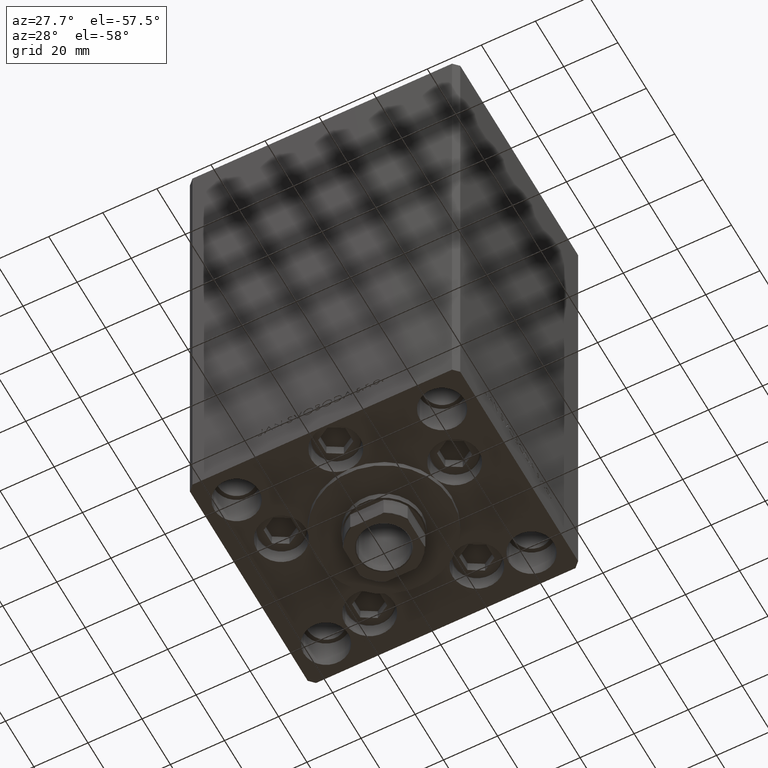
[diagram: clean part render]
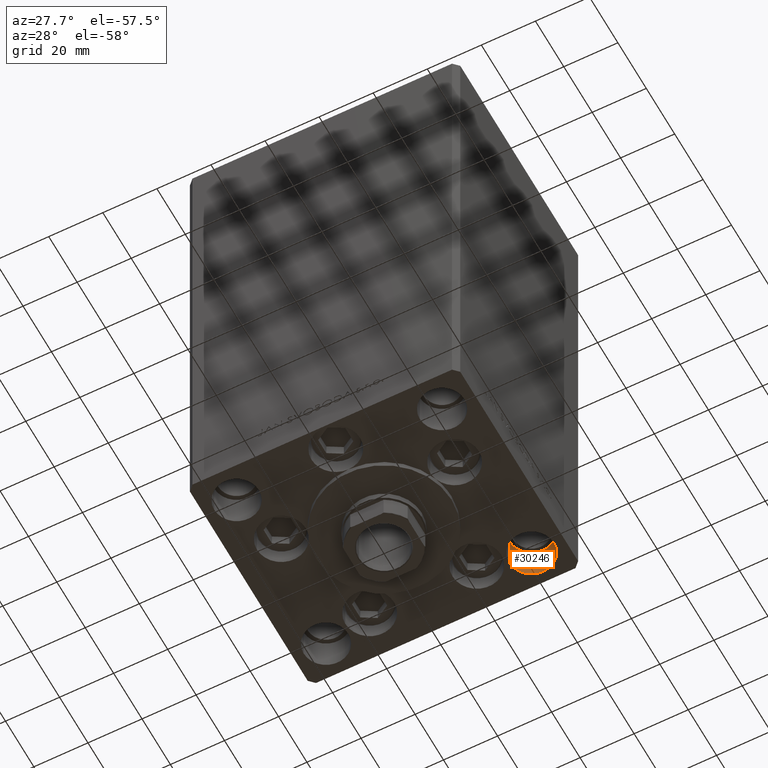
[diagram: same view with one face highlighted and labeled with its STEP entity id]
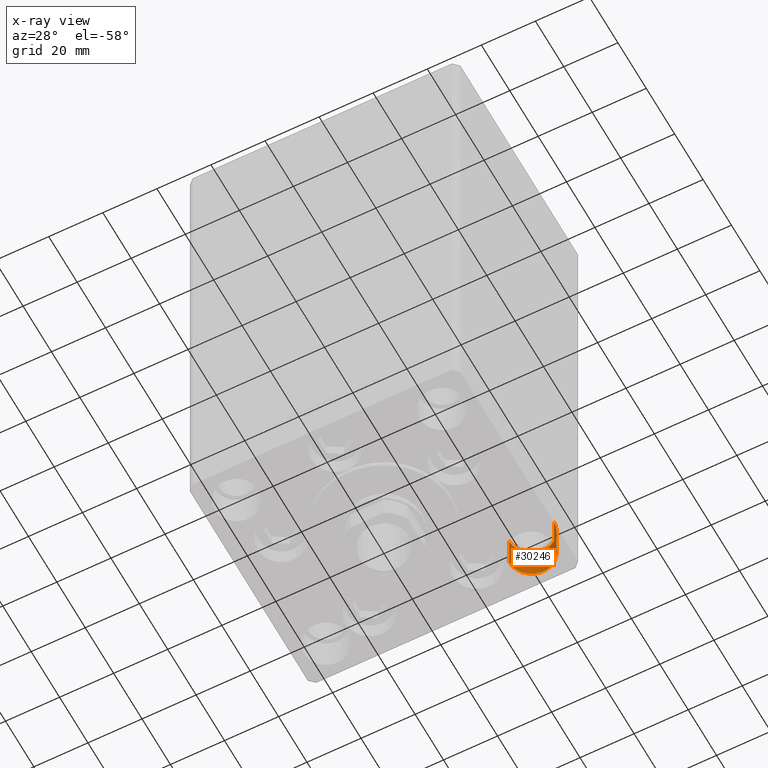
[diagram: x-ray of the same camera — body ghosted, the highlighted face saturated]
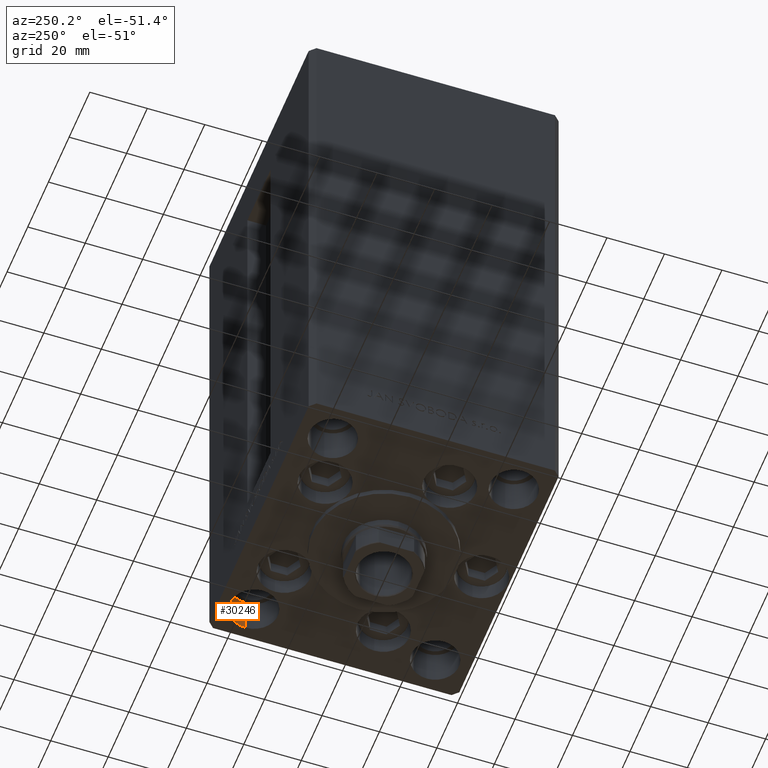
[diagram: same view with one face highlighted and labeled with its STEP entity id]
A machine part, auxiliary view. The second image highlights one B-rep face of the part: STEP entity #30246.
The next image is the same camera in x-ray: the body ghosted, the highlighted face saturated — about 0% of this face is hidden behind the body in this view.
A second angle (auxiliary view) of the same face is appended — the face is thin or edge-on in the first view.
In plain terms, the highlighted cylindrical surface (edge-blend (fillet) strip) has radius 8.25 mm, axis along (0, 0, -1).
Its self-contained STEP definition (entity closure, byte-faithful):
#1995 = DIRECTION ( 'NONE',  ( 0.000000000000000000, 0.000000000000000000, 1.000000000000000000 ) ) ;
#3542 = VERTEX_POINT ( 'NONE', #24598 ) ;
#5745 = CARTESIAN_POINT ( 'NONE',  ( -38.00000000000000000, 31.50000000000000000, 0.000000000000000000 ) ) ;
#6695 = VERTEX_POINT ( 'NONE', #6925 ) ;
#6925 = CARTESIAN_POINT ( 'NONE',  ( -46.25000000000000000, 31.50000000000000000, 0.000000000000000000 ) ) ;
#7707 = ORIENTED_EDGE ( 'NONE', *, *, #12609, .T. ) ;
#8463 = VERTEX_POINT ( 'NONE', #11202 ) ;
#8579 = CIRCLE ( 'NONE', #41875, 8.250000000000000000 ) ;
#8834 = LINE ( 'NONE', #34896, #11172 ) ;
#10295 = DIRECTION ( 'NONE',  ( 1.000000000000000000, 0.000000000000000000, 0.000000000000000000 ) ) ;
#11172 = VECTOR ( 'NONE', #20267, 1000.000000000000000 ) ;
#11202 = CARTESIAN_POINT ( 'NONE',  ( -46.25000000000000000, 31.50000000000000000, -13.00000000000000000 ) ) ;
#12609 = EDGE_CURVE ( 'NONE', #3542, #28139, #47896, .T. ) ;
#12672 = VECTOR ( 'NONE', #14100, 1000.000000000000000 ) ;
#13756 = CIRCLE ( 'NONE', #45470, 8.250000000000000000 ) ;
#14100 = DIRECTION ( 'NONE',  ( -0.000000000000000000, -0.000000000000000000, 1.000000000000000000 ) ) ;
#15527 = EDGE_CURVE ( 'NONE', #8463, #6695, #8834, .T. ) ;
#17179 = DIRECTION ( 'NONE',  ( 1.000000000000000000, 0.000000000000000000, 0.000000000000000000 ) ) ;
#18521 = DIRECTION ( 'NONE',  ( -0.000000000000000000, -0.000000000000000000, 1.000000000000000000 ) ) ;
#19985 = ORIENTED_EDGE ( 'NONE', *, *, #15527, .F. ) ;
#20267 = DIRECTION ( 'NONE',  ( -0.000000000000000000, -0.000000000000000000, 1.000000000000000000 ) ) ;
#21809 = CARTESIAN_POINT ( 'NONE',  ( -29.75000000000000000, 31.50000000000000000, -13.00000000000000000 ) ) ;
#24598 = CARTESIAN_POINT ( 'NONE',  ( -29.75000000000000000, 31.50000000000000000, -13.00000000000000000 ) ) ;
#24905 = EDGE_LOOP ( 'NONE', ( #19985, #36235, #7707, #42215 ) ) ;
#27681 = EDGE_CURVE ( 'NONE', #28139, #6695, #13756, .T. ) ;
#28006 = CARTESIAN_POINT ( 'NONE',  ( -29.75000000000000000, 31.50000000000000000, 0.000000000000000000 ) ) ;
#28139 = VERTEX_POINT ( 'NONE', #28006 ) ;
#30246 = ADVANCED_FACE ( 'NONE', ( #45070 ), #49063, .F. ) ;
#33649 = DIRECTION ( 'NONE',  ( 1.000000000000000000, 0.000000000000000000, 0.000000000000000000 ) ) ;
#34896 = CARTESIAN_POINT ( 'NONE',  ( -46.25000000000000000, 31.50000000000000000, -13.00000000000000000 ) ) ;
#36235 = ORIENTED_EDGE ( 'NONE', *, *, #38840, .F. ) ;
#37361 = CARTESIAN_POINT ( 'NONE',  ( -38.00000000000000000, 31.50000000000000000, -13.00000000000000000 ) ) ;
#38840 = EDGE_CURVE ( 'NONE', #3542, #8463, #8579, .T. ) ;
#39999 = AXIS2_PLACEMENT_3D ( 'NONE', #37361, #18521, #33649 ) ;
#41875 = AXIS2_PLACEMENT_3D ( 'NONE', #44551, #44306, #10295 ) ;
#42215 = ORIENTED_EDGE ( 'NONE', *, *, #27681, .T. ) ;
#44306 = DIRECTION ( 'NONE',  ( 0.000000000000000000, 0.000000000000000000, 1.000000000000000000 ) ) ;
#44551 = CARTESIAN_POINT ( 'NONE',  ( -38.00000000000000000, 31.50000000000000000, -13.00000000000000000 ) ) ;
#45070 = FACE_OUTER_BOUND ( 'NONE', #24905, .T. ) ;
#45470 = AXIS2_PLACEMENT_3D ( 'NONE', #5745, #1995, #17179 ) ;
#47896 = LINE ( 'NONE', #21809, #12672 ) ;
#49063 = CYLINDRICAL_SURFACE ( 'NONE', #39999, 8.250000000000000000 ) ;